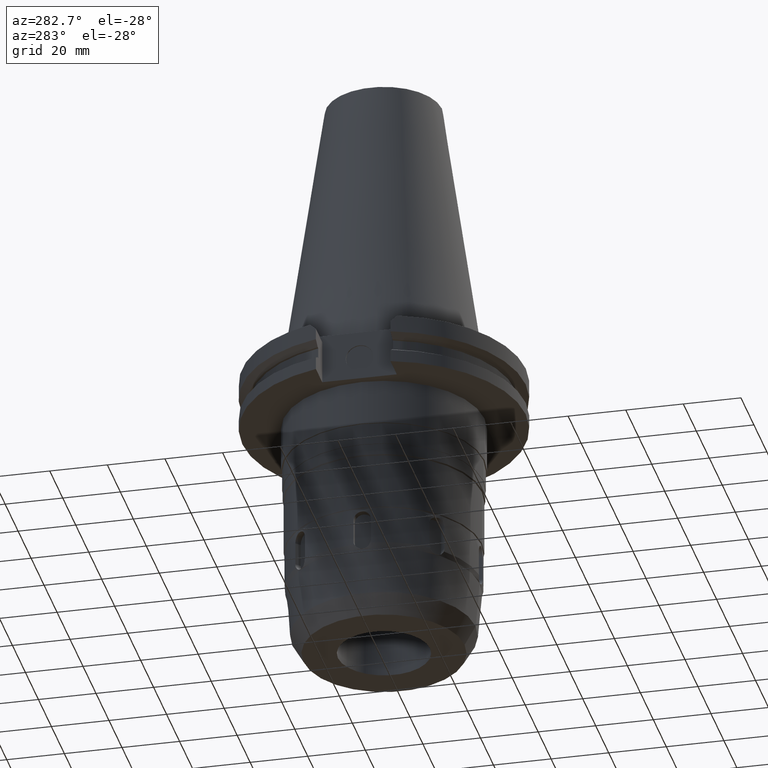
[diagram: clean part render]
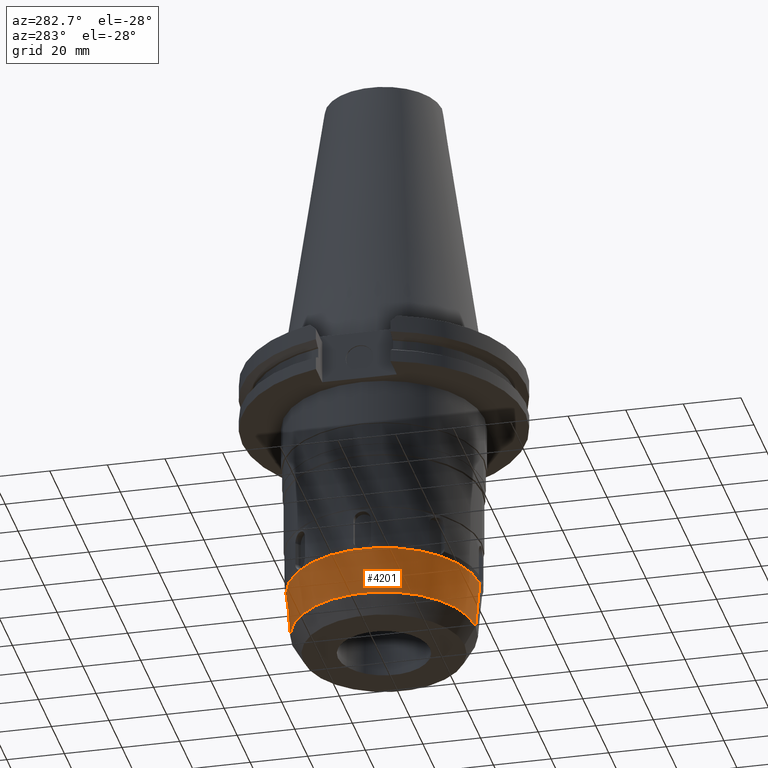
[diagram: same view with one face highlighted and labeled with its STEP entity id]
A machine part, auxiliary view. The second image highlights one B-rep face of the part: STEP entity #4201.
In plain terms, the highlighted conical surface has half-angle 5 deg.
Its self-contained STEP definition (entity closure, byte-faithful):
#1725=CARTESIAN_POINT('',(0.E0,0.E0,-8.216383665915E1));
#1726=DIRECTION('',(0.E0,0.E0,-1.E0));
#1727=DIRECTION('',(0.E0,-1.E0,0.E0));
#1728=AXIS2_PLACEMENT_3D('',#1725,#1726,#1727);
#1881=DIRECTION('',(0.E0,8.715574274763E-2,-9.961946980917E-1));
#1882=VECTOR('',#1881,1.625803005364E1);
#1883=CARTESIAN_POINT('',(0.E0,-3.325058647236E1,-8.216383665915E1));
#1884=LINE('',#1883,#1882);
#1888=CARTESIAN_POINT('',(0.E0,0.E0,-9.836E1));
#1889=DIRECTION('',(0.E0,0.E0,-1.E0));
#1890=DIRECTION('',(0.E0,-1.E0,0.E0));
#1891=AXIS2_PLACEMENT_3D('',#1888,#1889,#1890);
#1896=DIRECTION('',(0.E0,-8.715574274763E-2,-9.961946980917E-1));
#1897=VECTOR('',#1896,1.625803005364E1);
#1898=CARTESIAN_POINT('',(0.E0,3.325058647236E1,-8.216383665915E1));
#1899=LINE('',#1898,#1897);
#2833=CARTESIAN_POINT('',(0.E0,3.325058647236E1,-8.216383665915E1));
#2834=VERTEX_POINT('',#2833);
#2835=CARTESIAN_POINT('',(0.E0,-3.325058647236E1,-8.216383665915E1));
#2836=VERTEX_POINT('',#2835);
#2851=CARTESIAN_POINT('',(0.E0,3.183360578742E1,-9.836E1));
#2852=VERTEX_POINT('',#2851);
#2853=CARTESIAN_POINT('',(0.E0,-3.183360578742E1,-9.836E1));
#2854=VERTEX_POINT('',#2853);
#4187=CARTESIAN_POINT('',(0.E0,0.E0,-9.026191832957E1));
#4188=DIRECTION('',(0.E0,0.E0,1.E0));
#4189=DIRECTION('',(0.E0,1.E0,0.E0));
#4190=AXIS2_PLACEMENT_3D('',#4187,#4188,#4189);
#4191=CONICAL_SURFACE('',#4190,3.254209612989E1,5.E0);
#4193=ORIENTED_EDGE('',*,*,#4192,.F.);
#4194=ORIENTED_EDGE('',*,*,#4110,.F.);
#4196=ORIENTED_EDGE('',*,*,#4195,.T.);
#4198=ORIENTED_EDGE('',*,*,#4197,.T.);
#4199=EDGE_LOOP('',(#4193,#4194,#4196,#4198));
#4200=FACE_OUTER_BOUND('',#4199,.F.);
#1729=CIRCLE('',#1728,3.325058647236E1);
#1892=CIRCLE('',#1891,3.183360578742E1);
#4110=EDGE_CURVE('',#2836,#2834,#1729,.T.);
#4192=EDGE_CURVE('',#2834,#2852,#1899,.T.);
#4195=EDGE_CURVE('',#2836,#2854,#1884,.T.);
#4197=EDGE_CURVE('',#2854,#2852,#1892,.T.);
#4201=ADVANCED_FACE('',(#4200),#4191,.T.);